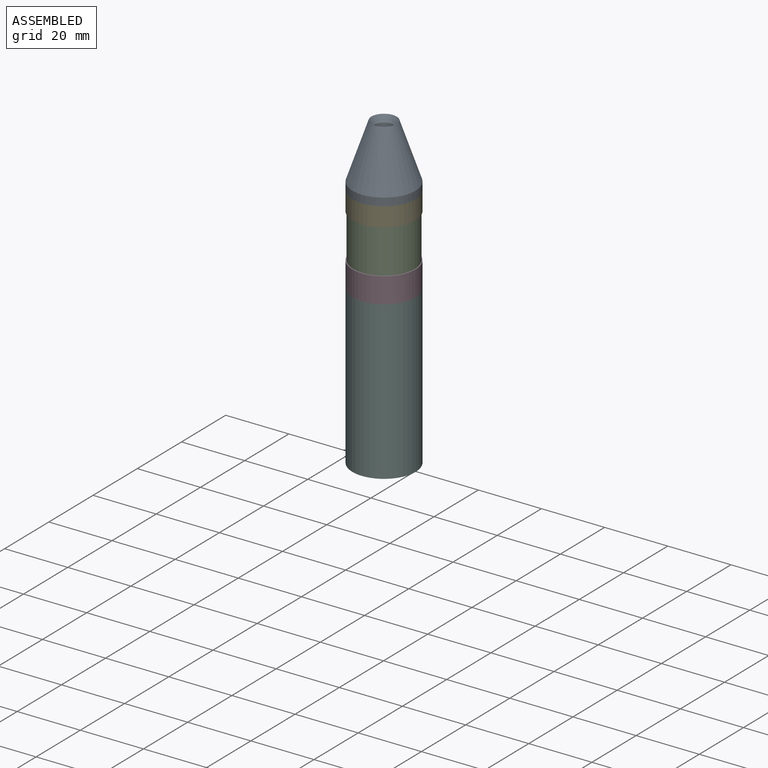
[diagram: assembled view]
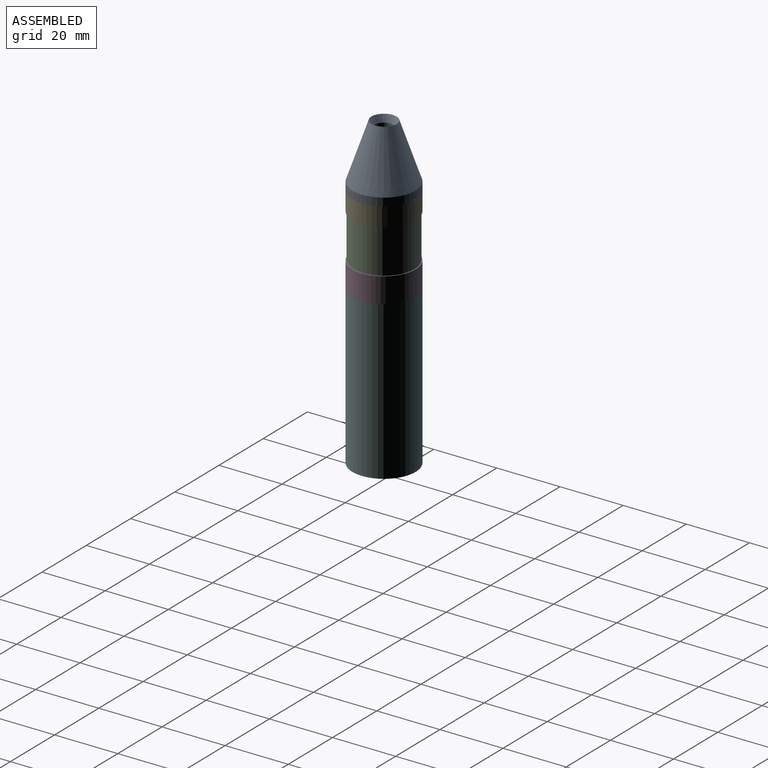
[diagram: assembled view, second angle]
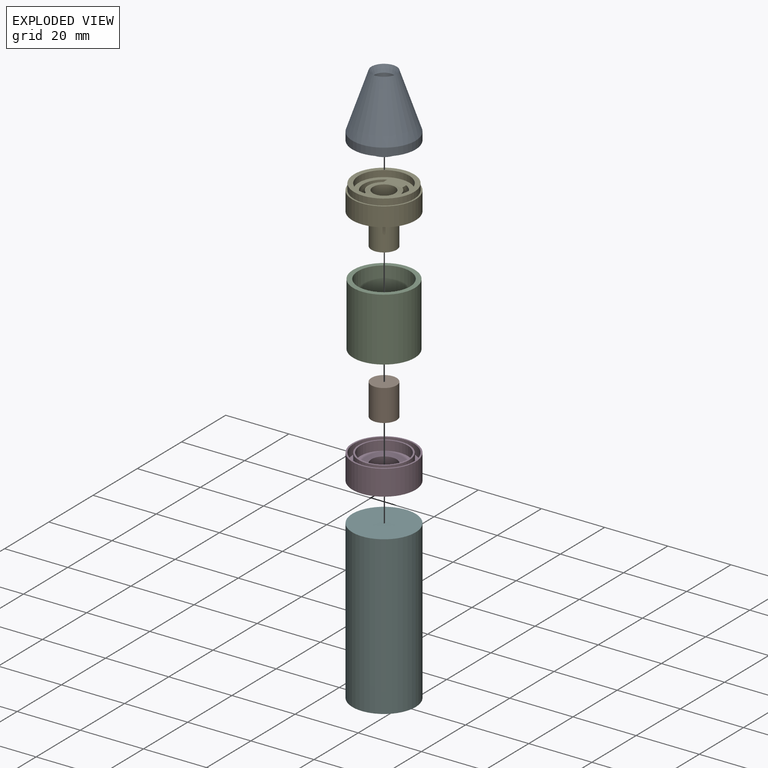
[diagram: exploded view]
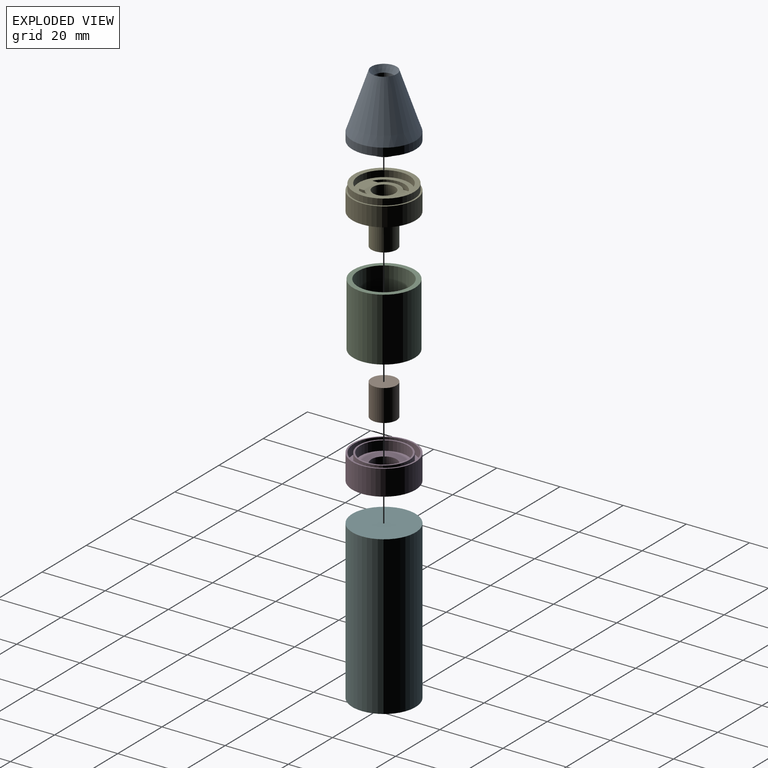
[diagram: exploded view, second angle]
ASSEMBLY  parts=6 mates=5
PART A: 9 faces, bbox 20x20x23 mm
  f0: plane 8x8mm, normal (0,0,-1), area 22mm2, adj f1,f8
  f1: cylinder r=3mm len=20.93mm, axis (0,0,1), area 394.5mm2, adj f0,f2
  f2: cone r=4mm half-angle=25.8deg, axis (0,0,1), area 50.5mm2, adj f1,f3
  f3: cone r=10mm half-angle=18.9deg, axis (0,0,-1), area 813.7mm2, adj f2,f4
  f4: cylinder r=10mm len=20mm, axis (0,0,1), area 157.1mm2, adj f3,f5
  f5: plane 20x20mm, normal (0,0,-1), area 30.6mm2, adj f4,f6
  f6: cylinder r=9.5mm len=19mm, axis (0,0,1), area 149.2mm2, adj f5,f7
  f7: plane 19x19mm, normal (0,0,-1), area 233.3mm2, adj f6,f8
  f8: cylinder r=4mm len=8mm, axis (0,0,1), area 138.2mm2, adj f0,f7
PART B: 3 faces, bbox 8x8x10 mm
  f0: cylinder r=4mm len=10mm, axis (0,0,-1), area 251.3mm2, adj f1,f2
  f1: plane 8x8mm, normal (0,0,1), area 50.3mm2, adj f0
  f2: plane 8x8mm, normal (0,0,-1), area 50.3mm2, adj f0
PART C: 4 faces, bbox 19.5x19.5x20 mm
  f0: cylinder r=8.25mm len=20mm, axis (0,0,-1), area 1036.7mm2, adj f2,f3
  f1: cylinder r=9.75mm len=20mm, axis (0,0,-1), area 1225.2mm2, adj f2,f3
  f2: plane 19.5x19.5mm, normal (0,0,1), area 84.8mm2, adj f0,f1
  f3: plane 19.5x19.5mm, normal (0,0,-1), area 84.8mm2, adj f0,f1
PART D: 11 faces, bbox 20x20x8 mm
  f0: cylinder r=10mm len=20mm, axis (0,0,1), area 502.7mm2, adj f1,f3
  f1: plane 20x20mm, normal (0,0,-1), area 314.2mm2, adj f0
  f2: cylinder r=9.5mm len=19mm, axis (0,0,-1), area 179.1mm2, adj f3,f4
  f3: plane 20x20mm, normal (0,0,1), area 30.6mm2, adj f0,f2
  f4: plane 19x19mm, normal (0,0,1), area 82.5mm2, adj f2,f6
  f5: cylinder r=7.5mm len=15mm, axis (0,0,-1), area 141.4mm2, adj f7,f8
  f6: cylinder r=8mm len=16mm, axis (0,0,-1), area 150.8mm2, adj f4,f7
  f7: plane 16x16mm, normal (0,0,1), area 24.3mm2, adj f5,f6
  f8: plane 15x15mm, normal (0,0,1), area 126.4mm2, adj f5,f9
  f9: cylinder r=4mm len=8mm, axis (0,0,1), area 75.4mm2, adj f8,f10
  f10: plane 8x8mm, normal (0,0,1), area 50.3mm2, adj f9
PART E: 24 faces, bbox 20x20x18 mm
  f0: plane 16x16mm, normal (0,0,1), area 127.3mm2, adj f3,f4,f5,f6,f7,f8,f10,f11
  f1: plane 15x15mm, normal (0,0,-1), area 91.2mm2, adj f3,f4,f5,f6,f7,f8,f10,f11
  f2: plane 19x19mm, normal (0,0,-1), area 82.5mm2, adj f14,f17
  f3: cylinder r=5mm len=8mm, axis (0,0,-1), area 27.8mm2, adj f0,f1,f4,f10
  f4: plane 3x1.77mm, normal (1,0,0), area 5.3mm2, adj f0,f1,f3,f5
  f5: cylinder r=6.5mm len=11.53mm, axis (0,0,-1), area 42.6mm2, adj f0,f1,f4,f10
  f6: plane 3x1.77mm, normal (-1,0,0), area 5.3mm2, adj f0,f1,f7,f11
  f7: cylinder r=5mm len=8mm, axis (0,0,-1), area 27.8mm2, adj f0,f1,f6,f8
  f8: plane 3x1.77mm, normal (-1,0,0), area 5.3mm2, adj f0,f1,f7,f11
  f9: cylinder r=10mm len=20mm, axis (0,0,-1), area 377mm2, adj f13,f15
  f10: plane 3x1.77mm, normal (1,0,0), area 5.3mm2, adj f0,f1,f3,f5
  f11: cylinder r=6.5mm len=11.53mm, axis (0,0,-1), area 42.6mm2, adj f0,f1,f6,f8
  f12: cylinder r=3.5mm len=16mm, axis (0,0,-1), area 351.9mm2, adj f0,f20
  f13: plane 20x20mm, normal (0,0,1), area 30.6mm2, adj f9,f22
  f14: cylinder r=9.5mm len=19mm, axis (0,0,1), area 179.1mm2, adj f2,f15
  f15: plane 20x20mm, normal (0,0,-1), area 30.6mm2, adj f9,f14
  f16: cylinder r=7.5mm len=15mm, axis (0,0,1), area 141.4mm2, adj f1,f18
  f17: cylinder r=8mm len=16mm, axis (0,0,1), area 150.8mm2, adj f2,f18
  f18: plane 16x16mm, normal (0,0,-1), area 24.3mm2, adj f16,f17
  f19: cylinder r=4mm len=13mm, axis (0,0,1), area 326.7mm2, adj f1,f20
  f20: plane 8x8mm, normal (0,0,-1), area 11.8mm2, adj f12,f19
  f21: cylinder r=8mm len=16mm, axis (0,0,-1), area 100.5mm2, adj f0,f23
  f22: cylinder r=9.5mm len=19mm, axis (0,0,-1), area 119.4mm2, adj f13,f23
  f23: plane 19x19mm, normal (0,0,1), area 82.5mm2, adj f21,f22
PART F: 3 faces, bbox 20x20x50 mm
  f0: cylinder r=10mm len=50mm, axis (0,0,-1), area 3141.6mm2, adj f1,f2
  f1: plane 20x20mm, normal (0,0,1), area 314.2mm2, adj f0
  f2: plane 20x20mm, normal (0,0,-1), area 314.2mm2, adj f0
PLACE A t=(68.85,-41.19,70.44)mm
PLACE B t=(92.97,-62.84,-3)mm
PLACE C at identity
PLACE D t=(60.47,-82.13,0)mm
PLACE E t=(17.83,-55.04,20)mm
PLACE F t=(93.67,-100.25,-55)mm
MATE fastened A.f1 <-> E.f3  axis (0,0,-1) through (35,-41.19,23)mm
MATE fastened E.f3 <-> C.f0  axis (0,0,-1) through (35,-41.19,20)mm
MATE parallel F.f0 <-> D.f0  axis (0,0,1) through (35,-41.19,-5)mm
MATE fastened D.f0 <-> C.f0  axis (0,0,1) through (35,-41.19,0)mm
MATE slider B.f0 <-> E.f3  axis (0,0,1) through (35,-41.19,7)mm
